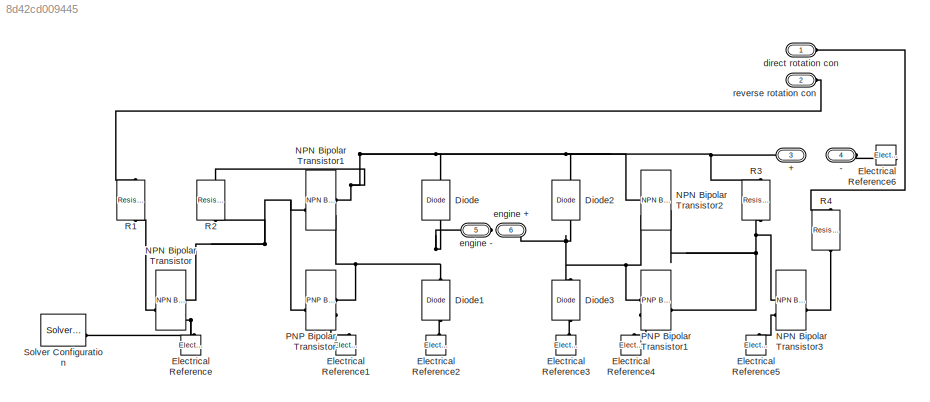
MODEL slx_8d42cd009445
KIND model
CONFIG AbsTol = auto
CONFIG EnableMultiTasking = off
CONFIG FixedStep = auto
CONFIG MaxStep = auto
CONFIG MinStep = auto
CONFIG RelTol = 1e-3
CONFIG SampleTimeConstraint = Unconstrained
CONFIG SolverName = VariableStepAuto
CONFIG StartTime = 0.0
CONFIG StopTime = 10.0
BLOCK [PMIOPort] +
  NameLocation = top
  Port = 3
  Side = Left
BLOCK [PMIOPort] -
  Port = 4
  Side = Left
BLOCK [Reference] Diode  REF=ee_lib/Semiconductors &
Converters/Diode
  NameLocation = right
  SourceBlock = ee_lib/Semiconductors &\nConverters/Diode
  SourceType = Diode
BLOCK [Reference] Diode1  REF=ee_lib/Semiconductors &
Converters/Diode
  NameLocation = right
  SourceBlock = ee_lib/Semiconductors &\nConverters/Diode
  SourceType = Diode
BLOCK [Reference] Diode2  REF=ee_lib/Semiconductors &
Converters/Diode
  NameLocation = right
  SourceBlock = ee_lib/Semiconductors &\nConverters/Diode
  SourceType = Diode
BLOCK [Reference] Diode3  REF=ee_lib/Semiconductors &
Converters/Diode
  NameLocation = right
  SourceBlock = ee_lib/Semiconductors &\nConverters/Diode
  SourceType = Diode
BLOCK [Reference] Electrical Reference  REF=fl_lib/Electrical/Electrical Elements/Electrical Reference
  LibrarySourceBlock = ee_lib/Connectors &\nReferences/Electrical Reference
  NameLocation = right
  SourceBlock = fl_lib/Electrical/Electrical Elements/Electrical Reference
  SourceType = Electrical Reference
BLOCK [Reference] Electrical Reference1  REF=fl_lib/Electrical/Electrical Elements/Electrical Reference
  LibrarySourceBlock = ee_lib/Connectors &\nReferences/Electrical Reference
  NameLocation = right
  SourceBlock = fl_lib/Electrical/Electrical Elements/Electrical Reference
  SourceType = Electrical Reference
BLOCK [Reference] Electrical Reference2  REF=fl_lib/Electrical/Electrical Elements/Electrical Reference
  LibrarySourceBlock = ee_lib/Connectors &\nReferences/Electrical Reference
  NameLocation = right
  SourceBlock = fl_lib/Electrical/Electrical Elements/Electrical Reference
  SourceType = Electrical Reference
BLOCK [Reference] Electrical Reference3  REF=fl_lib/Electrical/Electrical Elements/Electrical Reference
  LibrarySourceBlock = ee_lib/Connectors &\nReferences/Electrical Reference
  NameLocation = right
  SourceBlock = fl_lib/Electrical/Electrical Elements/Electrical Reference
  SourceType = Electrical Reference
BLOCK [Reference] Electrical Reference4  REF=fl_lib/Electrical/Electrical Elements/Electrical Reference
  LibrarySourceBlock = ee_lib/Connectors &\nReferences/Electrical Reference
  NameLocation = right
  SourceBlock = fl_lib/Electrical/Electrical Elements/Electrical Reference
  SourceType = Electrical Reference
BLOCK [Reference] Electrical Reference5  REF=fl_lib/Electrical/Electrical Elements/Electrical Reference
  LibrarySourceBlock = ee_lib/Connectors &\nReferences/Electrical Reference
  NameLocation = right
  SourceBlock = fl_lib/Electrical/Electrical Elements/Electrical Reference
  SourceType = Electrical Reference
BLOCK [Reference] Electrical Reference6  REF=fl_lib/Electrical/Electrical Elements/Electrical Reference
  LibrarySourceBlock = ee_lib/Connectors &\nReferences/Electrical Reference
  NameLocation = top
  SourceBlock = fl_lib/Electrical/Electrical Elements/Electrical Reference
  SourceType = Electrical Reference
BLOCK [Reference] NPN Bipolar Transistor  REF=ee_lib/Semiconductors &
Converters/NPN Bipolar
Transistor
  SourceBlock = ee_lib/Semiconductors &\nConverters/NPN Bipolar\nTransistor
  SourceType = NPN Bipolar\nTransistor
BLOCK [Reference] NPN Bipolar Transistor1  REF=ee_lib/Semiconductors &
Converters/NPN Bipolar
Transistor
  SourceBlock = ee_lib/Semiconductors &\nConverters/NPN Bipolar\nTransistor
  SourceType = NPN Bipolar\nTransistor
BLOCK [Reference] NPN Bipolar Transistor2  REF=ee_lib/Semiconductors &
Converters/NPN Bipolar
Transistor
  SourceBlock = ee_lib/Semiconductors &\nConverters/NPN Bipolar\nTransistor
  SourceType = NPN Bipolar\nTransistor
BLOCK [Reference] NPN Bipolar Transistor3  REF=ee_lib/Semiconductors &
Converters/NPN Bipolar
Transistor
  SourceBlock = ee_lib/Semiconductors &\nConverters/NPN Bipolar\nTransistor
  SourceType = NPN Bipolar\nTransistor
BLOCK [Reference] PNP Bipolar Transistor  REF=ee_lib/Semiconductors &
Converters/PNP Bipolar
Transistor
  SourceBlock = ee_lib/Semiconductors &\nConverters/PNP Bipolar\nTransistor
  SourceType = PNP Bipolar\nTransistor
BLOCK [Reference] PNP Bipolar Transistor1  REF=ee_lib/Semiconductors &
Converters/PNP Bipolar
Transistor
  SourceBlock = ee_lib/Semiconductors &\nConverters/PNP Bipolar\nTransistor
  SourceType = PNP Bipolar\nTransistor
BLOCK [Reference] R1  REF=fl_lib/Electrical/Electrical Elements/Resistor
  NameLocation = left
  SourceBlock = fl_lib/Electrical/Electrical Elements/Resistor
  SourceType = Resistor
BLOCK [Reference] R2  REF=fl_lib/Electrical/Electrical Elements/Resistor
  NameLocation = left
  SourceBlock = fl_lib/Electrical/Electrical Elements/Resistor
  SourceType = Resistor
BLOCK [Reference] R3  REF=fl_lib/Electrical/Electrical Elements/Resistor
  NameLocation = left
  SourceBlock = fl_lib/Electrical/Electrical Elements/Resistor
  SourceType = Resistor
BLOCK [Reference] R4  REF=fl_lib/Electrical/Electrical Elements/Resistor
  NameLocation = left
  SourceBlock = fl_lib/Electrical/Electrical Elements/Resistor
  SourceType = Resistor
BLOCK [Reference] Solver Configuration  REF=nesl_utility/Solver
Configuration
  SourceBlock = nesl_utility/Solver\nConfiguration
  SourceType = Solver\nConfiguration
BLOCK [PMIOPort] direct rotation con 
  Side = Left
BLOCK [PMIOPort] engine +
  Port = 6
  Side = Right
BLOCK [PMIOPort] engine -
  NameLocation = top
  Port = 5
  Side = Right
BLOCK [PMIOPort] reverse rotation con
  Port = 2
  Side = Left
PNET net1: +:RConn1 -- Diode2:RConn1 -- Diode:RConn1 -- NPN Bipolar Transistor1:RConn1 -- NPN Bipolar Transistor2:RConn1 -- R2:LConn1 -- R3:LConn1
PLINE -:RConn1 -- Electrical Reference6:LConn1
PLINE Diode1:LConn1 -- Electrical Reference2:LConn1
PNET net2: Diode1:RConn1 -- Diode:LConn1 -- NPN Bipolar Transistor1:RConn2 -- PNP Bipolar Transistor:RConn1 -- engine -:RConn1
PNET net3: Diode2:LConn1 -- Diode3:RConn1 -- NPN Bipolar Transistor2:RConn2 -- PNP Bipolar Transistor1:RConn1 -- engine +:RConn1
PLINE Diode3:LConn1 -- Electrical Reference3:LConn1
PLINE Electrical Reference1:LConn1 -- PNP Bipolar Transistor:RConn2
PLINE Electrical Reference4:LConn1 -- PNP Bipolar Transistor1:RConn2
PLINE Electrical Reference5:LConn1 -- NPN Bipolar Transistor3:RConn2
PNET net4: Electrical Reference:LConn1 -- NPN Bipolar Transistor:RConn2 -- Solver Configuration:RConn1
PNET net5: NPN Bipolar Transistor1:LConn1 -- NPN Bipolar Transistor:RConn1 -- PNP Bipolar Transistor:LConn1 -- R2:RConn1
PNET net6: NPN Bipolar Transistor2:LConn1 -- NPN Bipolar Transistor3:RConn1 -- PNP Bipolar Transistor1:LConn1 -- R3:RConn1
PLINE NPN Bipolar Transistor3:LConn1 -- R4:RConn1
PLINE NPN Bipolar Transistor:LConn1 -- R1:RConn1
PLINE R1:LConn1 -- reverse rotation con:RConn1
PLINE R4:LConn1 -- direct rotation con :RConn1
note: PNET lines group multi-terminal physical nets as a canonical sorted terminal list (undirected conserving connections); 2-terminal nets keep the pairwise PLINE form
